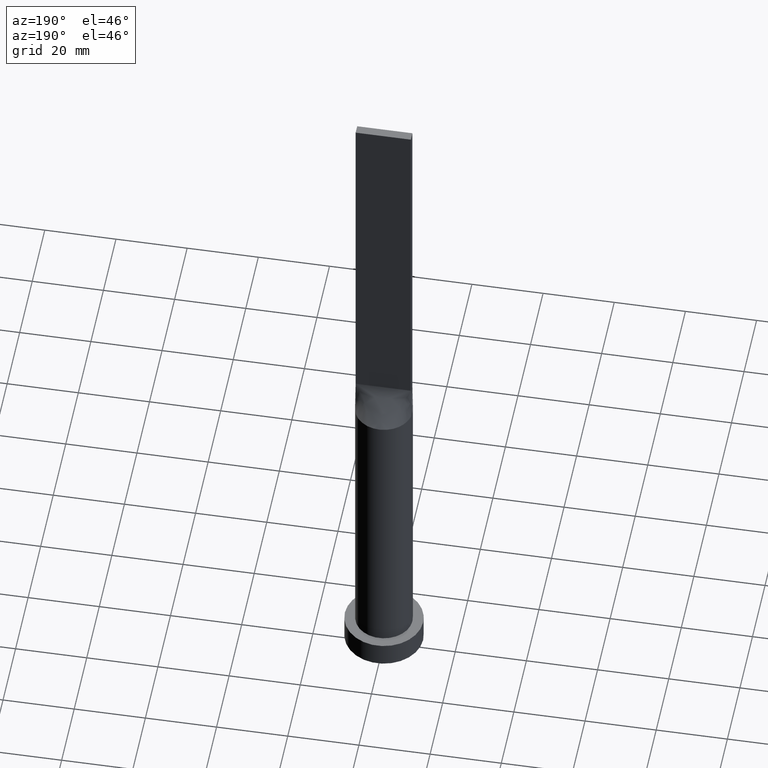
[diagram: clean part render]
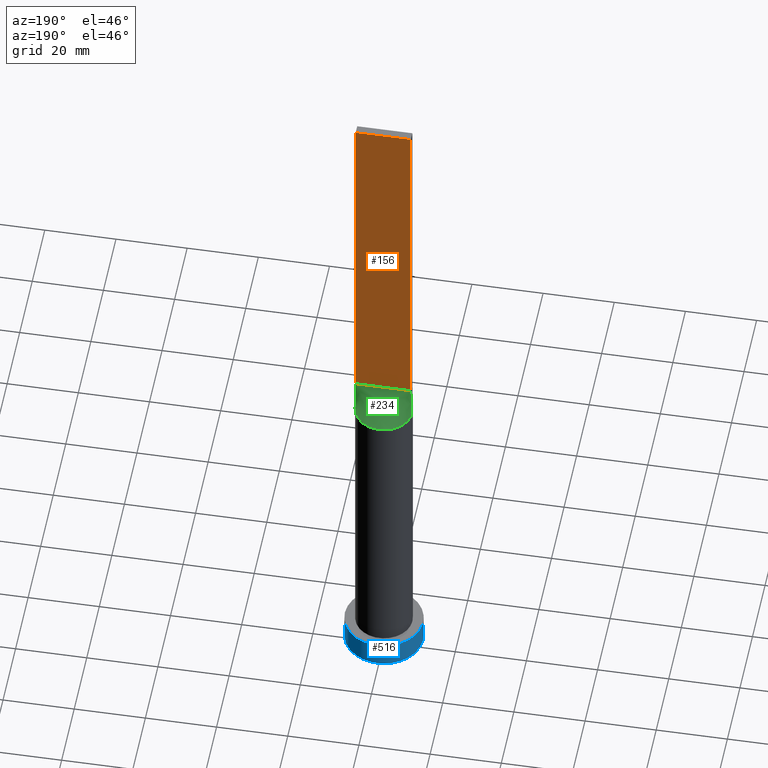
[diagram: same view with three faces highlighted in distinct colors, each labeled with its STEP entity id]
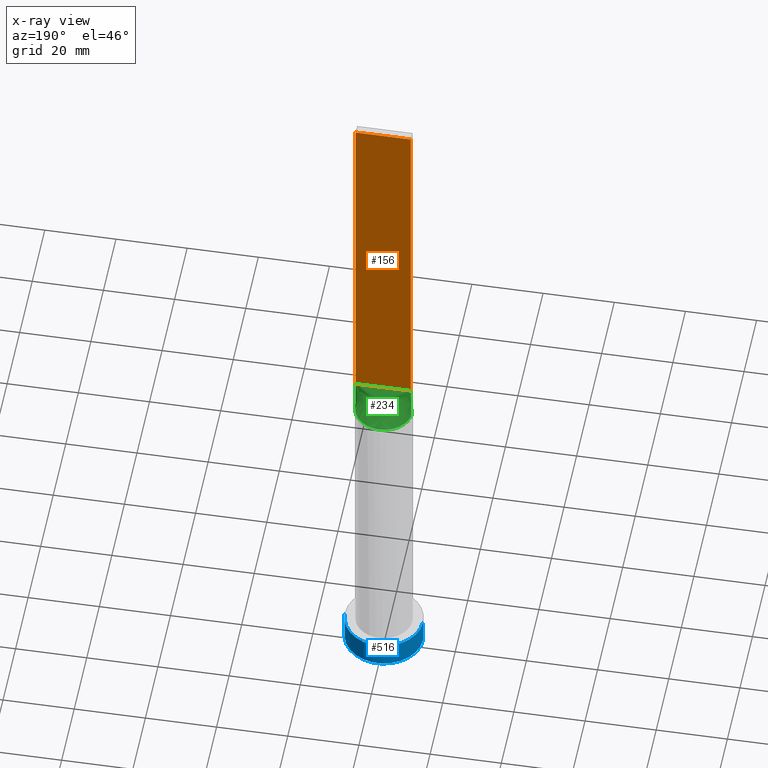
[diagram: x-ray of the same camera — body ghosted, the three highlighted faces saturated]
A machine part, auxiliary view with three faces highlighted in distinct colors.
The next image is the same camera in x-ray (body ghosted, the three faces saturated) — at least one of them is partly hidden behind the body in this view.
Their STEP definitions:

[orange] entity #156 — the highlighted planar face has unit normal (0, -1, 0).
#1 = DIRECTION ( 'NONE',  ( 0.000000000000000000, -0.000000000000000000, -1.000000000000000000 ) ) ;
#2 = CARTESIAN_POINT ( 'NONE',  ( -7.750000000000000000, 1.250000000000000222, 200.0000000000000000 ) ) ;
#10 = CARTESIAN_POINT ( 'NONE',  ( 7.750000000000000000, 1.250000000000000222, 100.0000000000000000 ) ) ;
#11 = DIRECTION ( 'NONE',  ( 0.000000000000000000, -1.000000000000000000, 0.000000000000000000 ) ) ;
#37 = LINE ( 'NONE', #149, #377 ) ;
#38 = EDGE_CURVE ( 'NONE', #272, #626, #263, .T. ) ;
#49 = FACE_OUTER_BOUND ( 'NONE', #251, .T. ) ;
#68 = ORIENTED_EDGE ( 'NONE', *, *, #38, .F. ) ;
#145 = EDGE_CURVE ( 'NONE', #272, #587, #351, .T. ) ;
#149 = CARTESIAN_POINT ( 'NONE',  ( -7.750000000000000000, 1.250000000000000222, 100.0000000000000000 ) ) ;
#151 = DIRECTION ( 'NONE',  ( -0.000000000000000000, -0.000000000000000000, -1.000000000000000000 ) ) ;
#156 = ADVANCED_FACE ( 'NONE', ( #49 ), #476, .F. ) ;
#161 = EDGE_CURVE ( 'NONE', #626, #375, #583, .T. ) ;
#181 = VECTOR ( 'NONE', #151, 1000.000000000000000 ) ;
#219 = CARTESIAN_POINT ( 'NONE',  ( 7.750000000000000000, 1.250000000000000222, 200.0000000000000000 ) ) ;
#247 = ORIENTED_EDGE ( 'NONE', *, *, #145, .T. ) ;
#248 = EDGE_CURVE ( 'NONE', #587, #375, #37, .T. ) ;
#251 = EDGE_LOOP ( 'NONE', ( #358, #599, #68, #247 ) ) ;
#255 = DIRECTION ( 'NONE',  ( -1.000000000000000000, -0.000000000000000000, -0.000000000000000000 ) ) ;
#263 = LINE ( 'NONE', #452, #357 ) ;
#272 = VERTEX_POINT ( 'NONE', #373 ) ;
#351 = LINE ( 'NONE', #219, #372 ) ;
#357 = VECTOR ( 'NONE', #521, 1000.000000000000000 ) ;
#358 = ORIENTED_EDGE ( 'NONE', *, *, #248, .T. ) ;
#372 = VECTOR ( 'NONE', #594, 1000.000000000000000 ) ;
#373 = CARTESIAN_POINT ( 'NONE',  ( 7.750000000000000000, 1.250000000000000222, 200.0000000000000000 ) ) ;
#375 = VERTEX_POINT ( 'NONE', #389 ) ;
#377 = VECTOR ( 'NONE', #255, 1000.000000000000000 ) ;
#389 = CARTESIAN_POINT ( 'NONE',  ( -7.750000000000000000, 1.250000000000000222, 100.0000000000000000 ) ) ;
#442 = CARTESIAN_POINT ( 'NONE',  ( -7.750000000000000000, 1.250000000000000222, 200.0000000000000000 ) ) ;
#446 = AXIS2_PLACEMENT_3D ( 'NONE', #609, #11, #1 ) ;
#452 = CARTESIAN_POINT ( 'NONE',  ( 7.750000000000000000, 1.250000000000000222, 200.0000000000000000 ) ) ;
#476 = PLANE ( 'NONE',  #446 ) ;
#521 = DIRECTION ( 'NONE',  ( -1.000000000000000000, 0.000000000000000000, 0.000000000000000000 ) ) ;
#583 = LINE ( 'NONE', #442, #181 ) ;
#587 = VERTEX_POINT ( 'NONE', #10 ) ;
#594 = DIRECTION ( 'NONE',  ( -0.000000000000000000, -0.000000000000000000, -1.000000000000000000 ) ) ;
#599 = ORIENTED_EDGE ( 'NONE', *, *, #161, .F. ) ;
#609 = CARTESIAN_POINT ( 'NONE',  ( 7.750000000000000000, 1.250000000000000222, 200.0000000000000000 ) ) ;
#626 = VERTEX_POINT ( 'NONE', #2 ) ;

[blue] entity #516 — the highlighted cylindrical surface (partial cylindrical patch) has radius 11 mm, axis along (-0, -0, -1).
#92 = VECTOR ( 'NONE', #159, 1000.000000000000000 ) ;
#120 = EDGE_CURVE ( 'NONE', #513, #270, #410, .T. ) ;
#137 = AXIS2_PLACEMENT_3D ( 'NONE', #490, #193, #384 ) ;
#155 = DIRECTION ( 'NONE',  ( 0.000000000000000000, 0.000000000000000000, 1.000000000000000000 ) ) ;
#157 = CARTESIAN_POINT ( 'NONE',  ( 0.000000000000000000, 0.000000000000000000, 7.000000000000000000 ) ) ;
#159 = DIRECTION ( 'NONE',  ( -0.000000000000000000, -0.000000000000000000, -1.000000000000000000 ) ) ;
#162 = FACE_OUTER_BOUND ( 'NONE', #592, .T. ) ;
#193 = DIRECTION ( 'NONE',  ( 0.000000000000000000, 0.000000000000000000, 1.000000000000000000 ) ) ;
#194 = VERTEX_POINT ( 'NONE', #582 ) ;
#214 = DIRECTION ( 'NONE',  ( -0.000000000000000000, -0.000000000000000000, -1.000000000000000000 ) ) ;
#228 = CARTESIAN_POINT ( 'NONE',  ( -11.00000000000000000, 0.000000000000000000, 7.000000000000000000 ) ) ;
#235 = ORIENTED_EDGE ( 'NONE', *, *, #454, .T. ) ;
#259 = CARTESIAN_POINT ( 'NONE',  ( 11.00000000000000000, 1.347111479062088405E-15, 7.000000000000000000 ) ) ;
#267 = DIRECTION ( 'NONE',  ( 1.000000000000000000, 0.000000000000000000, 0.000000000000000000 ) ) ;
#270 = VERTEX_POINT ( 'NONE', #228 ) ;
#271 = CARTESIAN_POINT ( 'NONE',  ( -11.00000000000000000, 0.000000000000000000, 7.000000000000000000 ) ) ;
#291 = CARTESIAN_POINT ( 'NONE',  ( 11.00000000000000000, 1.347111479062088405E-15, 0.000000000000000000 ) ) ;
#309 = CYLINDRICAL_SURFACE ( 'NONE', #328, 11.00000000000000000 ) ;
#312 = VERTEX_POINT ( 'NONE', #291 ) ;
#314 = LINE ( 'NONE', #498, #92 ) ;
#328 = AXIS2_PLACEMENT_3D ( 'NONE', #157, #214, #352 ) ;
#349 = DIRECTION ( 'NONE',  ( -0.000000000000000000, -0.000000000000000000, -1.000000000000000000 ) ) ;
#352 = DIRECTION ( 'NONE',  ( -1.000000000000000000, 0.000000000000000000, 0.000000000000000000 ) ) ;
#355 = ORIENTED_EDGE ( 'NONE', *, *, #120, .F. ) ;
#384 = DIRECTION ( 'NONE',  ( 1.000000000000000000, 0.000000000000000000, 0.000000000000000000 ) ) ;
#402 = CARTESIAN_POINT ( 'NONE',  ( 0.000000000000000000, 0.000000000000000000, 0.000000000000000000 ) ) ;
#410 = CIRCLE ( 'NONE', #137, 11.00000000000000000 ) ;
#420 = ORIENTED_EDGE ( 'NONE', *, *, #523, .T. ) ;
#454 = EDGE_CURVE ( 'NONE', #312, #194, #489, .T. ) ;
#489 = CIRCLE ( 'NONE', #562, 11.00000000000000000 ) ;
#490 = CARTESIAN_POINT ( 'NONE',  ( 0.000000000000000000, 0.000000000000000000, 7.000000000000000000 ) ) ;
#498 = CARTESIAN_POINT ( 'NONE',  ( 11.00000000000000000, 1.347111479062088405E-15, 7.000000000000000000 ) ) ;
#500 = EDGE_CURVE ( 'NONE', #270, #194, #507, .T. ) ;
#507 = LINE ( 'NONE', #271, #598 ) ;
#513 = VERTEX_POINT ( 'NONE', #259 ) ;
#516 = ADVANCED_FACE ( 'NONE', ( #162 ), #309, .T. ) ;
#523 = EDGE_CURVE ( 'NONE', #513, #312, #314, .T. ) ;
#543 = ORIENTED_EDGE ( 'NONE', *, *, #500, .F. ) ;
#562 = AXIS2_PLACEMENT_3D ( 'NONE', #402, #155, #267 ) ;
#582 = CARTESIAN_POINT ( 'NONE',  ( -11.00000000000000000, 0.000000000000000000, 0.000000000000000000 ) ) ;
#592 = EDGE_LOOP ( 'NONE', ( #355, #420, #235, #543 ) ) ;
#598 = VECTOR ( 'NONE', #349, 1000.000000000000000 ) ;

[green] entity #234 — the highlighted face is a freeform B-spline surface patch.
#7 = CARTESIAN_POINT ( 'NONE',  ( 0.6458333333333270421, 1.250000000000000222, 100.0000000000000000 ) ) ;
#10 = CARTESIAN_POINT ( 'NONE',  ( 7.750000000000000000, 1.250000000000000222, 100.0000000000000000 ) ) ;
#16 = CARTESIAN_POINT ( 'NONE',  ( 4.520833333333327708, 1.250000000000000222, 100.0000000000000000 ) ) ;
#17 = CARTESIAN_POINT ( 'NONE',  ( -0.3229166666666729579, 1.250000000000000444, 100.0000000000000000 ) ) ;
#22 = CARTESIAN_POINT ( 'NONE',  ( 5.166666666666662522, 1.250000000000000222, 100.0000000000000000 ) ) ;
#24 = CARTESIAN_POINT ( 'NONE',  ( -5.489583333333337478, 1.250000000000000222, 100.0000000000000284 ) ) ;
#37 = LINE ( 'NONE', #149, #377 ) ;
#40 = CARTESIAN_POINT ( 'NONE',  ( -2.762781956618985291, 7.527418670504290255, 90.00000000000002842 ) ) ;
#44 = FACE_OUTER_BOUND ( 'NONE', #412, .T. ) ;
#46 = CARTESIAN_POINT ( 'NONE',  ( -6.458333333333336590, 1.250000000000000222, 100.0000000000000284 ) ) ;
#52 = ORIENTED_EDGE ( 'NONE', *, *, #186, .F. ) ;
#60 = ORIENTED_EDGE ( 'NONE', *, *, #98, .T. ) ;
#66 = CARTESIAN_POINT ( 'NONE',  ( -6.883287261198669960, 4.100742229440782260, 90.00000000000002842 ) ) ;
#72 = CARTESIAN_POINT ( 'NONE',  ( 2.260416666666660745, 1.250000000000000222, 100.0000000000000000 ) ) ;
#73 = CARTESIAN_POINT ( 'NONE',  ( -7.088837466865208548, 3.729743859143727747, 89.99999999999998579 ) ) ;
#75 = CARTESIAN_POINT ( 'NONE',  ( 7.897939137640443974, 1.273861156091724789, 90.00000000000001421 ) ) ;
#81 = CARTESIAN_POINT ( 'NONE',  ( 7.793128424795161990, 1.923622864214272088, 89.99999999999998579 ) ) ;
#82 = VECTOR ( 'NONE', #629, 1000.000000000000227 ) ;
#85 = CARTESIAN_POINT ( 'NONE',  ( 5.489583333333329485, 1.250000000000000222, 100.0000000000000000 ) ) ;
#87 = B_SPLINE_CURVE_WITH_KNOTS ( 'NONE', 3,
 ( #382, #81, #320, #517, #278, #225, #541, #392, #141, #253, #538, #487, #623, #573, #143, #93, #147, #344, #40, #96, #249, #443, #387, #447, #631, #495, #535, #340, #196, #395 ),
 .UNSPECIFIED., .F., .F.,
 ( 4, 2, 2, 2, 2, 2, 2, 2, 2, 2, 2, 2, 2, 2, 4 ),
 ( 0.000000000000000000, 0.1250000000000000000, 0.1875000000000000000, 0.2500000000000000000, 0.3125000000000000000, 0.3750000000000000000, 0.4375000000000000000, 0.5000000000000000000, 0.5625000000000000000, 0.6250000000000000000, 0.6875000000000000000, 0.7500000000000000000, 0.8125000000000000000, 0.8750000000000000000, 1.000000000000000000 ),
 .UNSPECIFIED. ) ;
#93 = CARTESIAN_POINT ( 'NONE',  ( -0.5677556330368852544, 7.999999999999998224, 90.00000000000002842 ) ) ;
#96 = CARTESIAN_POINT ( 'NONE',  ( -3.754841939107308235, 7.084924699190308317, 90.00000000000004263 ) ) ;
#97 = CARTESIAN_POINT ( 'NONE',  ( -7.897950825069725234, 1.273863048877633020, 90.00000000000001421 ) ) ;
#98 = EDGE_CURVE ( 'NONE', #315, #227, #87, .T. ) ;
#113 = CARTESIAN_POINT ( 'NONE',  ( 7.597511974649646227, 2.632154125590748350, 89.99999999999998579 ) ) ;
#124 = CARTESIAN_POINT ( 'NONE',  ( -7.823964482850588986, 1.261929755298481393, 95.00000000000000000 ) ) ;
#125 = CARTESIAN_POINT ( 'NONE',  ( 5.434261125067508580, 5.890653037160103800, 90.00000000000001421 ) ) ;
#127 = CARTESIAN_POINT ( 'NONE',  ( -0.6458333333333395876, 1.250000000000000222, 100.0000000000000000 ) ) ;
#129 = CARTESIAN_POINT ( 'NONE',  ( -7.597511974649647115, 2.632154125590751903, 90.00000000000001421 ) ) ;
#139 = CARTESIAN_POINT ( 'NONE',  ( -3.552083333333339255, 1.250000000000000222, 100.0000000000000284 ) ) ;
#141 = CARTESIAN_POINT ( 'NONE',  ( 5.056714967162550423, 6.220536417275850383, 90.00000000000001421 ) ) ;
#143 = CARTESIAN_POINT ( 'NONE',  ( 0.5677556330368851434, 7.999999999999998224, 90.00000000000001421 ) ) ;
#144 = CARTESIAN_POINT ( 'NONE',  ( -5.056714967162549534, 6.220536417275851271, 90.00000000000002842 ) ) ;
#147 = CARTESIAN_POINT ( 'NONE',  ( -1.135368687448994329, 7.938897956688654389, 90.00000000000001421 ) ) ;
#149 = CARTESIAN_POINT ( 'NONE',  ( -7.750000000000000000, 1.250000000000000222, 100.0000000000000000 ) ) ;
#153 = CARTESIAN_POINT ( 'NONE',  ( -4.217034177653714799, 6.817775467282660706, 90.00000000000002842 ) ) ;
#154 = CARTESIAN_POINT ( 'NONE',  ( 1.135368687448996328, 7.938897956688654389, 90.00000000000001421 ) ) ;
#164 = CARTESIAN_POINT ( 'NONE',  ( 0.3229166666666602459, 1.250000000000000444, 100.0000000000000000 ) ) ;
#167 = CARTESIAN_POINT ( 'NONE',  ( 7.793128424795161990, 1.923622864214272088, 89.99999999999998579 ) ) ;
#168 = CARTESIAN_POINT ( 'NONE',  ( -1.291666666666672736, 1.250000000000000222, 100.0000000000000000 ) ) ;
#186 = EDGE_CURVE ( 'NONE', #315, #587, #632, .T. ) ;
#196 = CARTESIAN_POINT ( 'NONE',  ( -7.793128424795161102, 1.923622864214273198, 90.00000000000001421 ) ) ;
#201 = CARTESIAN_POINT ( 'NONE',  ( -2.762781956618985291, 7.527418670504290255, 90.00000000000002842 ) ) ;
#204 = CARTESIAN_POINT ( 'NONE',  ( 2.762781956618984847, 7.527418670504289366, 90.00000000000004263 ) ) ;
#205 = VECTOR ( 'NONE', #383, 1000.000000000000227 ) ;
#207 = ORIENTED_EDGE ( 'NONE', *, *, #286, .T. ) ;
#216 = CARTESIAN_POINT ( 'NONE',  ( -2.232993174580875539, 7.702525839322460044, 90.00000000000001421 ) ) ;
#221 = B_SPLINE_SURFACE_WITH_KNOTS ( 'NONE', 3, 1, ( 
 ( #636, #273 ),
 ( #167, #361 ),
 ( #113, #514 ),
 ( #569, #85 ),
 ( #330, #22 ),
 ( #601, #16 ),
 ( #374, #369 ),
 ( #125, #327 ),
 ( #441, #627 ),
 ( #390, #575 ),
 ( #413, #72 ),
 ( #204, #506 ),
 ( #266, #455 ),
 ( #154, #7 ),
 ( #590, #164 ),
 ( #359, #17 ),
 ( #602, #127 ),
 ( #216, #168 ),
 ( #201, #310 ),
 ( #313, #505 ),
 ( #153, #296 ),
 ( #144, #485 ),
 ( #566, #139 ),
 ( #269, #492 ),
 ( #624, #274 ),
 ( #66, #560 ),
 ( #73, #24 ),
 ( #129, #46 ),
 ( #305, #639 ),
 ( #463, #260 ) ),
 .UNSPECIFIED., .F., .F., .F.,
 ( 4, 2, 2, 2, 2, 2, 2, 2, 2, 2, 2, 2, 2, 2, 4 ),
 ( 2, 2 ),
 ( 0.000000000000000000, 0.1250000000000000000, 0.1875000000000000000, 0.2500000000000000000, 0.3125000000000000000, 0.3750000000000000000, 0.4375000000000000000, 0.5000000000000000000, 0.5625000000000000000, 0.6250000000000000000, 0.6875000000000000000, 0.7500000000000000000, 0.8125000000000000000, 0.8750000000000000000, 1.000000000000000000 ),
 ( 0.000000000000000000, 1.000000000000000000 ),
 .UNSPECIFIED. ) ;
#225 = CARTESIAN_POINT ( 'NONE',  ( 6.389139692789920666, 4.834731051311459638, 90.00000000000004263 ) ) ;
#227 = VERTEX_POINT ( 'NONE', #97 ) ;
#232 = ORIENTED_EDGE ( 'NONE', *, *, #248, .F. ) ;
#234 = ADVANCED_FACE ( 'NONE', ( #44 ), #221, .T. ) ;
#248 = EDGE_CURVE ( 'NONE', #587, #375, #37, .T. ) ;
#249 = CARTESIAN_POINT ( 'NONE',  ( -4.217034177653714799, 6.817775467282660706, 90.00000000000002842 ) ) ;
#253 = CARTESIAN_POINT ( 'NONE',  ( 4.217034177653714799, 6.817775467282659818, 89.99999999999998579 ) ) ;
#255 = DIRECTION ( 'NONE',  ( -1.000000000000000000, -0.000000000000000000, -0.000000000000000000 ) ) ;
#260 = CARTESIAN_POINT ( 'NONE',  ( -7.750000000000000000, 1.250000000000000222, 100.0000000000000000 ) ) ;
#266 = CARTESIAN_POINT ( 'NONE',  ( 2.232993174580878204, 7.702525839322459156, 90.00000000000002842 ) ) ;
#269 = CARTESIAN_POINT ( 'NONE',  ( -6.100409024666552327, 5.197691498289451317, 90.00000000000001421 ) ) ;
#273 = CARTESIAN_POINT ( 'NONE',  ( 7.750000000000000000, 1.250000000000000222, 100.0000000000000000 ) ) ;
#274 = CARTESIAN_POINT ( 'NONE',  ( -4.520833333333338366, 1.250000000000000222, 100.0000000000000284 ) ) ;
#278 = CARTESIAN_POINT ( 'NONE',  ( 6.883287261198673512, 4.100742229440780484, 90.00000000000004263 ) ) ;
#286 = EDGE_CURVE ( 'NONE', #227, #375, #559, .T. ) ;
#296 = CARTESIAN_POINT ( 'NONE',  ( -2.583333333333339255, 1.250000000000000222, 100.0000000000000284 ) ) ;
#305 = CARTESIAN_POINT ( 'NONE',  ( -7.793128424795161102, 1.923622864214273198, 90.00000000000001421 ) ) ;
#310 = CARTESIAN_POINT ( 'NONE',  ( -1.614583333333339477, 1.250000000000000222, 100.0000000000000142 ) ) ;
#313 = CARTESIAN_POINT ( 'NONE',  ( -3.754841939107308235, 7.084924699190308317, 90.00000000000004263 ) ) ;
#315 = VERTEX_POINT ( 'NONE', #75 ) ;
#320 = CARTESIAN_POINT ( 'NONE',  ( 7.597511974649646227, 2.632154125590748350, 89.99999999999998579 ) ) ;
#327 = CARTESIAN_POINT ( 'NONE',  ( 3.552083333333327708, 1.250000000000000222, 100.0000000000000142 ) ) ;
#330 = CARTESIAN_POINT ( 'NONE',  ( 6.883287261198673512, 4.100742229440780484, 90.00000000000004263 ) ) ;
#340 = CARTESIAN_POINT ( 'NONE',  ( -7.597511974649647115, 2.632154125590751903, 90.00000000000001421 ) ) ;
#344 = CARTESIAN_POINT ( 'NONE',  ( -2.232993174580875539, 7.702525839322460044, 90.00000000000001421 ) ) ;
#359 = CARTESIAN_POINT ( 'NONE',  ( -0.5677556330368852544, 7.999999999999998224, 90.00000000000002842 ) ) ;
#361 = CARTESIAN_POINT ( 'NONE',  ( 7.104166666666666075, 1.250000000000000222, 100.0000000000000000 ) ) ;
#369 = CARTESIAN_POINT ( 'NONE',  ( 4.197916666666661634, 1.250000000000000222, 100.0000000000000142 ) ) ;
#374 = CARTESIAN_POINT ( 'NONE',  ( 6.100409024666552327, 5.197691498289451317, 90.00000000000001421 ) ) ;
#375 = VERTEX_POINT ( 'NONE', #389 ) ;
#377 = VECTOR ( 'NONE', #255, 1000.000000000000000 ) ;
#382 = CARTESIAN_POINT ( 'NONE',  ( 7.897939137640443974, 1.273861156091724789, 90.00000000000001421 ) ) ;
#383 = DIRECTION ( 'NONE',  ( 0.01479123618026851987, -0.002385683254881837845, 0.9998877576246579801 ) ) ;
#387 = CARTESIAN_POINT ( 'NONE',  ( -5.434261125067506804, 5.890653037160105576, 90.00000000000001421 ) ) ;
#389 = CARTESIAN_POINT ( 'NONE',  ( -7.750000000000000000, 1.250000000000000222, 100.0000000000000000 ) ) ;
#390 = CARTESIAN_POINT ( 'NONE',  ( 4.217034177653714799, 6.817775467282659818, 89.99999999999998579 ) ) ;
#392 = CARTESIAN_POINT ( 'NONE',  ( 5.434261125067508580, 5.890653037160103800, 90.00000000000001421 ) ) ;
#395 = CARTESIAN_POINT ( 'NONE',  ( -7.897950825069725234, 1.273863048877633020, 90.00000000000001421 ) ) ;
#396 = CARTESIAN_POINT ( 'NONE',  ( 7.823964482850588986, 1.261929755298481393, 95.00000000000000000 ) ) ;
#412 = EDGE_LOOP ( 'NONE', ( #60, #207, #232, #52 ) ) ;
#413 = CARTESIAN_POINT ( 'NONE',  ( 3.754841939107309567, 7.084924699190306541, 90.00000000000002842 ) ) ;
#441 = CARTESIAN_POINT ( 'NONE',  ( 5.056714967162550423, 6.220536417275850383, 90.00000000000001421 ) ) ;
#443 = CARTESIAN_POINT ( 'NONE',  ( -5.056714967162549534, 6.220536417275851271, 90.00000000000002842 ) ) ;
#447 = CARTESIAN_POINT ( 'NONE',  ( -6.100409024666552327, 5.197691498289451317, 90.00000000000001421 ) ) ;
#455 = CARTESIAN_POINT ( 'NONE',  ( 1.291666666666660523, 1.250000000000000222, 100.0000000000000000 ) ) ;
#463 = CARTESIAN_POINT ( 'NONE',  ( -7.897928965701177084, 1.273859510596962563, 90.00000000000001421 ) ) ;
#485 = CARTESIAN_POINT ( 'NONE',  ( -3.229166666666672736, 1.250000000000000222, 100.0000000000000284 ) ) ;
#487 = CARTESIAN_POINT ( 'NONE',  ( 2.762781956618984847, 7.527418670504289366, 90.00000000000004263 ) ) ;
#492 = CARTESIAN_POINT ( 'NONE',  ( -4.197916666666672292, 1.250000000000000222, 100.0000000000000284 ) ) ;
#495 = CARTESIAN_POINT ( 'NONE',  ( -6.883287261198669960, 4.100742229440782260, 90.00000000000002842 ) ) ;
#505 = CARTESIAN_POINT ( 'NONE',  ( -2.260416666666672736, 1.250000000000000222, 100.0000000000000142 ) ) ;
#506 = CARTESIAN_POINT ( 'NONE',  ( 1.614583333333327264, 1.250000000000000222, 100.0000000000000000 ) ) ;
#514 = CARTESIAN_POINT ( 'NONE',  ( 6.458333333333331261, 1.250000000000000222, 100.0000000000000000 ) ) ;
#517 = CARTESIAN_POINT ( 'NONE',  ( 7.088837466865212988, 3.729743859143727303, 89.99999999999998579 ) ) ;
#535 = CARTESIAN_POINT ( 'NONE',  ( -7.088837466865208548, 3.729743859143727747, 89.99999999999998579 ) ) ;
#538 = CARTESIAN_POINT ( 'NONE',  ( 3.754841939107309567, 7.084924699190306541, 90.00000000000002842 ) ) ;
#541 = CARTESIAN_POINT ( 'NONE',  ( 6.100409024666552327, 5.197691498289451317, 90.00000000000001421 ) ) ;
#559 = LINE ( 'NONE', #124, #205 ) ;
#560 = CARTESIAN_POINT ( 'NONE',  ( -5.166666666666671404, 1.250000000000000222, 100.0000000000000284 ) ) ;
#566 = CARTESIAN_POINT ( 'NONE',  ( -5.434261125067506804, 5.890653037160105576, 90.00000000000001421 ) ) ;
#569 = CARTESIAN_POINT ( 'NONE',  ( 7.088837466865212988, 3.729743859143727303, 89.99999999999998579 ) ) ;
#573 = CARTESIAN_POINT ( 'NONE',  ( 1.135368687448996328, 7.938897956688654389, 90.00000000000001421 ) ) ;
#575 = CARTESIAN_POINT ( 'NONE',  ( 2.583333333333327264, 1.250000000000000222, 100.0000000000000000 ) ) ;
#587 = VERTEX_POINT ( 'NONE', #10 ) ;
#590 = CARTESIAN_POINT ( 'NONE',  ( 0.5677556330368851434, 7.999999999999998224, 90.00000000000001421 ) ) ;
#601 = CARTESIAN_POINT ( 'NONE',  ( 6.389139692789920666, 4.834731051311459638, 90.00000000000004263 ) ) ;
#602 = CARTESIAN_POINT ( 'NONE',  ( -1.135368687448994329, 7.938897956688654389, 90.00000000000001421 ) ) ;
#623 = CARTESIAN_POINT ( 'NONE',  ( 2.232993174580878204, 7.702525839322459156, 90.00000000000002842 ) ) ;
#624 = CARTESIAN_POINT ( 'NONE',  ( -6.389139692789916225, 4.834731051311460526, 90.00000000000002842 ) ) ;
#627 = CARTESIAN_POINT ( 'NONE',  ( 3.229166666666661190, 1.250000000000000222, 100.0000000000000000 ) ) ;
#629 = DIRECTION ( 'NONE',  ( -0.01479123618026851987, -0.002385683254881881647, 0.9998877576246579801 ) ) ;
#631 = CARTESIAN_POINT ( 'NONE',  ( -6.389139692789916225, 4.834731051311460526, 90.00000000000002842 ) ) ;
#632 = LINE ( 'NONE', #396, #82 ) ;
#636 = CARTESIAN_POINT ( 'NONE',  ( 7.897928965701177084, 1.273859510596963451, 90.00000000000001421 ) ) ;
#639 = CARTESIAN_POINT ( 'NONE',  ( -7.104166666666669627, 1.250000000000000222, 100.0000000000000000 ) ) ;